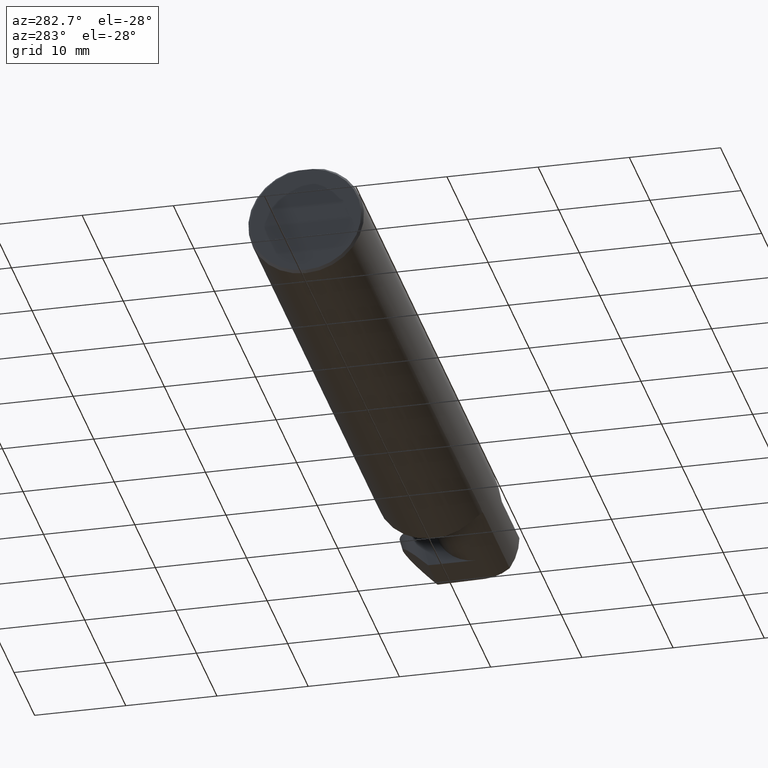
[diagram: clean part render]
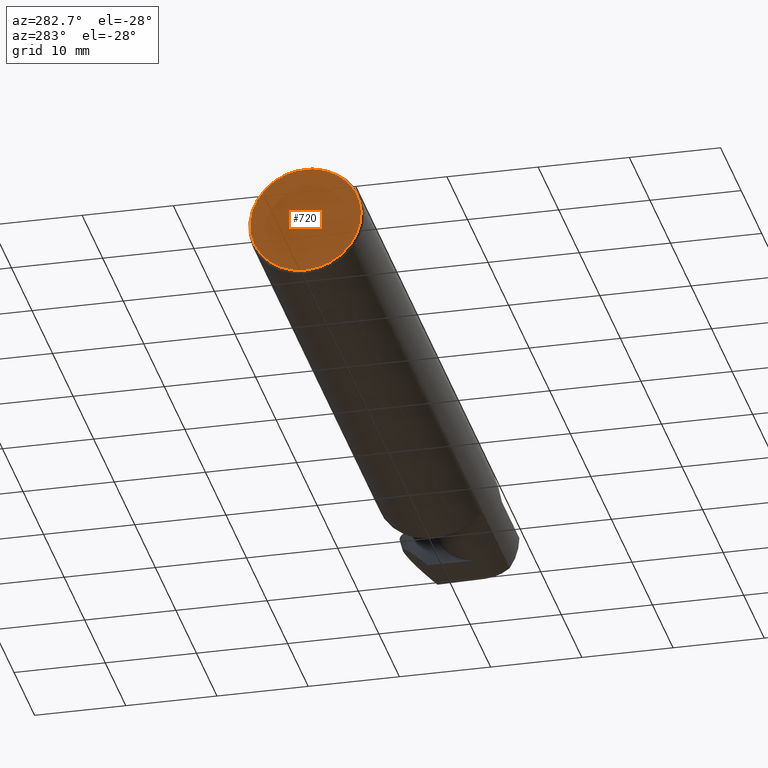
[diagram: same view with one face highlighted and labeled with its STEP entity id]
A machine part, auxiliary view. The second image highlights one B-rep face of the part: STEP entity #720.
In plain terms, the highlighted planar face has unit normal (1, 0, 0).
Its self-contained STEP definition (entity closure, byte-faithful):
#17 = AXIS2_PLACEMENT_3D ( 'NONE', #639, #581, #645 ) ;
#170 = AXIS2_PLACEMENT_3D ( 'NONE', #313, #551, #370 ) ;
#196 = FACE_OUTER_BOUND ( 'NONE', #343, .T. ) ;
#205 = CARTESIAN_POINT ( 'NONE',  ( 0.000000000000000000, 0.000000000000000000, -0.2398500000000001742 ) ) ;
#221 = CIRCLE ( 'NONE', #170, 0.2398500000000001742 ) ;
#313 = CARTESIAN_POINT ( 'NONE',  ( 0.000000000000000000, 0.000000000000000000, 0.000000000000000000 ) ) ;
#324 = AXIS2_PLACEMENT_3D ( 'NONE', #764, #588, #517 ) ;
#335 = CARTESIAN_POINT ( 'NONE',  ( 0.000000000000000000, 0.03090954545120574992, 0.2378499999999998671 ) ) ;
#343 = EDGE_LOOP ( 'NONE', ( #399, #520, #436 ) ) ;
#344 = VERTEX_POINT ( 'NONE', #205 ) ;
#353 = CIRCLE ( 'NONE', #17, 0.2398500000000001742 ) ;
#370 = DIRECTION ( 'NONE',  ( 0.000000000000000000, 0.000000000000000000, -1.000000000000000000 ) ) ;
#397 = EDGE_CURVE ( 'NONE', #344, #474, #353, .T. ) ;
#398 = DIRECTION ( 'NONE',  ( -0.000000000000000000, 1.000000000000000000, -0.000000000000000000 ) ) ;
#399 = ORIENTED_EDGE ( 'NONE', *, *, #445, .T. ) ;
#436 = ORIENTED_EDGE ( 'NONE', *, *, #397, .T. ) ;
#445 = EDGE_CURVE ( 'NONE', #474, #714, #457, .T. ) ;
#457 = LINE ( 'NONE', #716, #521 ) ;
#474 = VERTEX_POINT ( 'NONE', #666 ) ;
#517 = DIRECTION ( 'NONE',  ( 0.000000000000000000, 0.000000000000000000, -1.000000000000000000 ) ) ;
#520 = ORIENTED_EDGE ( 'NONE', *, *, #615, .T. ) ;
#521 = VECTOR ( 'NONE', #398, 39.37007874015748143 ) ;
#551 = DIRECTION ( 'NONE',  ( -1.000000000000000000, -0.000000000000000000, -0.000000000000000000 ) ) ;
#581 = DIRECTION ( 'NONE',  ( -1.000000000000000000, -0.000000000000000000, -0.000000000000000000 ) ) ;
#588 = DIRECTION ( 'NONE',  ( 1.000000000000000000, 0.000000000000000000, 0.000000000000000000 ) ) ;
#615 = EDGE_CURVE ( 'NONE', #714, #344, #221, .T. ) ;
#639 = CARTESIAN_POINT ( 'NONE',  ( 0.000000000000000000, 0.000000000000000000, 0.000000000000000000 ) ) ;
#645 = DIRECTION ( 'NONE',  ( 0.000000000000000000, 0.000000000000000000, -1.000000000000000000 ) ) ;
#666 = CARTESIAN_POINT ( 'NONE',  ( 0.000000000000000000, -0.03090954545120560767, 0.2378499999999998671 ) ) ;
#714 = VERTEX_POINT ( 'NONE', #335 ) ;
#716 = CARTESIAN_POINT ( 'NONE',  ( 0.000000000000000000, 0.2498499999999998500, 0.2378499999999998671 ) ) ;
#720 = ADVANCED_FACE ( 'NONE', ( #196 ), #775, .F. ) ;
#764 = CARTESIAN_POINT ( 'NONE',  ( 0.000000000000000000, 0.000000000000000000, 0.000000000000000000 ) ) ;
#775 = PLANE ( 'NONE',  #324 ) ;